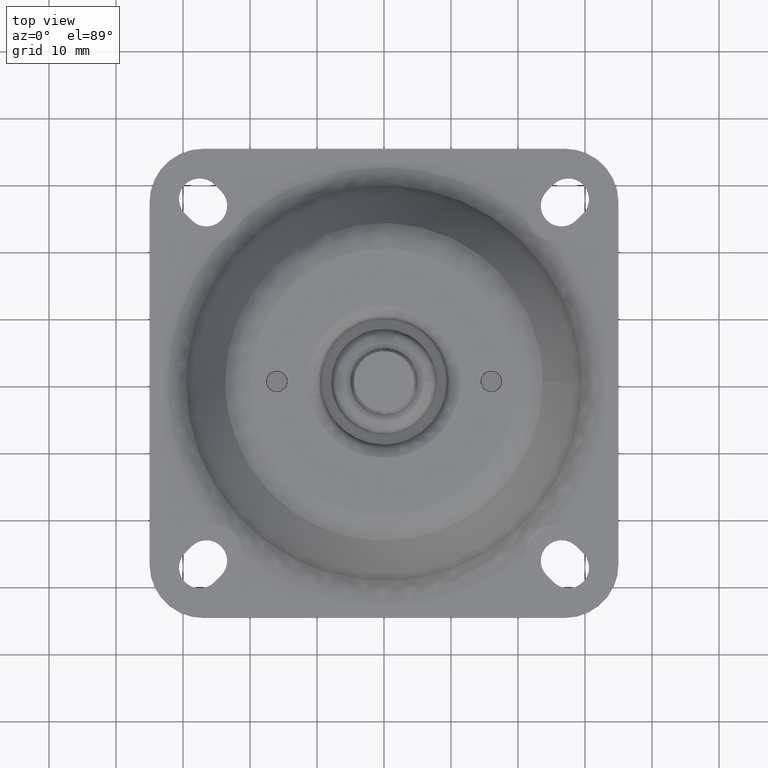
[diagram: clean part render]
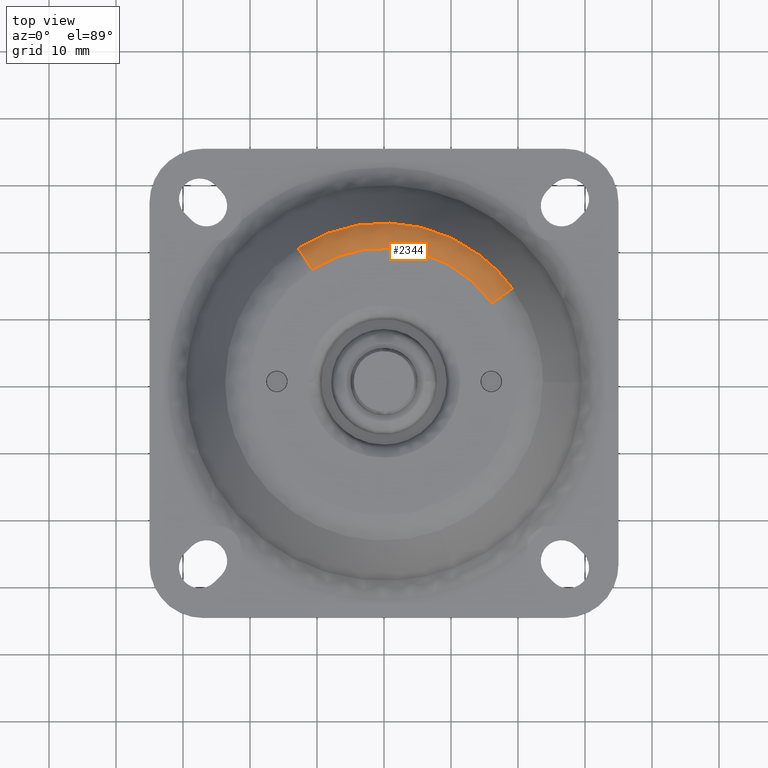
[diagram: same view with one face highlighted and labeled with its STEP entity id]
A machine part, top view. The second image highlights one B-rep face of the part: STEP entity #2344.
In plain terms, the highlighted face is a freeform B-spline surface patch.
Its self-contained STEP definition (entity closure, byte-faithful):
#2261=CARTESIAN_POINT('',(-10.659108895847385,16.589678917884669,27.995125357577159));
#2262=CARTESIAN_POINT('',(5.007410969956905,26.655644756954505,27.995125357577145));
#2263=CARTESIAN_POINT('',(15.952905349821734,11.590464181889741,27.995125357577155));
#2264=CARTESIAN_POINT('',(-12.106088251312720,18.841736115398579,28.118457542418049));
#2265=CARTESIAN_POINT('',(5.687169509686345,30.274161843777524,28.118457542418049));
#2266=CARTESIAN_POINT('',(18.118520217484598,13.163875482527512,28.118457542418053));
#2267=CARTESIAN_POINT('',(-12.877814990489364,20.042840160810311,25.850747548620337));
#2268=CARTESIAN_POINT('',(6.049709472203069,32.204048667332671,25.850747548620337));
#2269=CARTESIAN_POINT('',(19.273521423148953,14.003032978340139,25.850747548620333));
#2277=(BOUNDED_SURFACE()B_SPLINE_SURFACE(2,2,((#2261,#2264,#2267),(#2262,#2265,#2268),(#2263,#2266,#2269)),.UNSPECIFIED.,.F.,.F.,.U.)B_SPLINE_SURFACE_WITH_KNOTS((3,3),(3,3),(0.0,37.882597601404022),(0.0,4.968582099117784),.UNSPECIFIED.)GEOMETRIC_REPRESENTATION_ITEM()RATIONAL_B_SPLINE_SURFACE(((0.903213303377643,0.781272196253241,0.905127279978588),(0.664190500530456,0.574519406589171,0.665597969919837),(0.923997907048838,0.799250710185357,0.925955927780818)))REPRESENTATION_ITEM('')SURFACE());
#2278=CARTESIAN_POINT('',(-12.814746471438600,19.944679892121378,26.026962958469110));
#2279=VERTEX_POINT('',#2278);
#2280=CARTESIAN_POINT('',(19.179129287009381,13.934453077141571,26.026962970549022));
#2281=VERTEX_POINT('',#2280);
#2282=CARTESIAN_POINT('',(-12.814746471438600,19.944679892121378,26.026962958469110));
#2283=CARTESIAN_POINT('',(-11.399841660080080,20.854147050903741,26.026962957915590));
#2284=CARTESIAN_POINT('',(-9.299466324523078,21.906507061518639,26.026962957369360));
#2285=CARTESIAN_POINT('',(-6.233534431240479,22.911781831508389,26.026962957063610));
#2286=CARTESIAN_POINT('',(-3.584441108219649,23.502309804431292,26.026962957056512));
#2287=CARTESIAN_POINT('',(-0.551372528046693,23.773684798666832,26.026962957423450));
#2288=CARTESIAN_POINT('',(2.955646143607061,23.609644243812671,26.026962958289410));
#2289=CARTESIAN_POINT('',(5.900150005857563,23.029452214701880,26.026962959426331));
#2290=CARTESIAN_POINT('',(8.650601101898888,22.112744179074429,26.026962960834808));
#2291=CARTESIAN_POINT('',(11.129714457171589,21.008013400750929,26.026962962362770));
#2292=CARTESIAN_POINT('',(13.487149254365461,19.564879212453882,26.026962964178121));
#2293=CARTESIAN_POINT('',(16.388732447240422,17.277719409135312,26.026962966886270));
#2294=CARTESIAN_POINT('',(18.108416497518281,15.408862076588051,26.026962968966359));
#2295=CARTESIAN_POINT('',(19.179129287009381,13.934453077141571,26.026962970549022));
#2296=B_SPLINE_CURVE_WITH_KNOTS('',3,(#2282,#2283,#2284,#2285,#2286,#2287,#2288,#2289,#2290,#2291,#2292,#2293,#2294,#2295),.UNSPECIFIED.,.F.,.U.,(4,1,1,1,1,1,1,1,1,1,1,4),(0.000000044672234,5.045872818593004,7.008171210059707,9.671289411017870,13.175396222911330,16.118843243847000,20.183528909106069,22.145827019844610,24.808954478988131,28.313052315303491,30.415505435606299,35.881880140197509),.UNSPECIFIED.);
#2297=EDGE_CURVE('',#2279,#2281,#2296,.T.);
#2298=ORIENTED_EDGE('',*,*,#2297,.F.);
#2299=CARTESIAN_POINT('',(-10.773552346378890,16.767795861292520,28.0));
#2300=VERTEX_POINT('',#2299);
#2301=CARTESIAN_POINT('',(-10.773552346378890,16.767795861292520,28.0));
#2302=CARTESIAN_POINT('',(-10.935679656426180,17.020128383685769,28.000039309711450));
#2303=CARTESIAN_POINT('',(-11.259926973499530,17.524782062155520,27.941123556671609));
#2304=CARTESIAN_POINT('',(-11.679766424175931,18.178213908746159,27.706489197452711));
#2305=CARTESIAN_POINT('',(-12.083212767202269,18.806131767574001,27.337717552221591));
#2306=CARTESIAN_POINT('',(-12.467714152871450,19.404563977890628,26.816946128923490));
#2307=CARTESIAN_POINT('',(-12.707945275915209,19.778456107551889,26.311095320354820));
#2308=CARTESIAN_POINT('',(-12.814746471438600,19.944679892121378,26.026962958469110));
#2309=B_SPLINE_CURVE_WITH_KNOTS('',3,(#2301,#2302,#2303,#2304,#2305,#2306,#2307,#2308),.UNSPECIFIED.,.F.,.U.,(4,1,1,1,1,4),(0.000000036564232,0.899785426331286,1.799585457354965,2.422492304674517,3.391516508687668,4.429734921438554),.UNSPECIFIED.);
#2310=EDGE_CURVE('',#2300,#2279,#2309,.T.);
#2311=ORIENTED_EDGE('',*,*,#2310,.F.);
#2312=CARTESIAN_POINT('',(16.124185823796580,11.714906730508650,28.0));
#2313=VERTEX_POINT('',#2312);
#2314=CARTESIAN_POINT('',(16.124185823796580,11.714906730508650,28.0));
#2315=CARTESIAN_POINT('',(15.616272905633870,12.414010885791090,28.000000000000021));
#2316=CARTESIAN_POINT('',(14.282975118699049,14.018573780867721,27.999999999999961));
#2317=CARTESIAN_POINT('',(12.060420483557230,15.970964132572840,28.000000000000099));
#2318=CARTESIAN_POINT('',(9.632033907734652,17.507134151107021,27.999999999999961));
#2319=CARTESIAN_POINT('',(7.246749011561800,18.629897075263781,27.999999999999979));
#2320=CARTESIAN_POINT('',(4.843804775925732,19.391409094191030,28.000000000000060));
#2321=CARTESIAN_POINT('',(2.094125705960265,19.882756811347161,28.000000000000021));
#2322=CARTESIAN_POINT('',(-0.622491411982568,19.993773239756500,27.999999999999812));
#2323=CARTESIAN_POINT('',(-3.519245090252257,19.682702609376982,28.000000000000721));
#2324=CARTESIAN_POINT('',(-5.925423881892958,19.078728497421721,27.999999999998739));
#2325=CARTESIAN_POINT('',(-8.387311459527910,18.140366059262028,28.000000000002601));
#2326=CARTESIAN_POINT('',(-9.881344475834037,17.341126528913239,27.999999999997431));
#2327=CARTESIAN_POINT('',(-10.773552346378890,16.767795861292520,28.0));
#2328=B_SPLINE_CURVE_WITH_KNOTS('',3,(#2314,#2315,#2316,#2317,#2318,#2319,#2320,#2321,#2322,#2323,#2324,#2325,#2326,#2327),.UNSPECIFIED.,.F.,.U.,(4,1,1,1,1,1,1,1,1,1,1,4),(0.000000048810211,2.592405191925359,6.245390033625842,8.837827700917948,11.194579460025601,14.140550863747171,16.379407205991409,19.561046442908228,22.271318618869358,25.099434921305988,26.984832987933029,30.166442608397439),.UNSPECIFIED.);
#2329=EDGE_CURVE('',#2313,#2300,#2328,.T.);
#2330=ORIENTED_EDGE('',*,*,#2329,.F.);
#2331=CARTESIAN_POINT('',(16.124185823796580,11.714906730508650,28.0));
#2332=CARTESIAN_POINT('',(16.366827341041361,11.891196111839321,28.000019232525830));
#2333=CARTESIAN_POINT('',(16.945469106075130,12.311603962600589,27.929891574856558));
#2334=CARTESIAN_POINT('',(17.675837567696000,12.842247711067589,27.619708934545830));
#2335=CARTESIAN_POINT('',(18.253169233542561,13.261703719062590,27.190099958713589));
#2336=CARTESIAN_POINT('',(18.734121061889670,13.611135676276129,26.712259131137809));
#2337=CARTESIAN_POINT('',(19.019285974492110,13.818320112778199,26.311099090305259));
#2338=CARTESIAN_POINT('',(19.179129287009381,13.934453077141571,26.026962970549022));
#2339=B_SPLINE_CURVE_WITH_KNOTS('',3,(#2331,#2332,#2333,#2334,#2335,#2336,#2337,#2338),.UNSPECIFIED.,.F.,.U.,(4,1,1,1,1,4),(0.000000036564596,0.899785423594417,2.145666111621886,2.837789767666137,3.391516498369866,4.429734907961733),.UNSPECIFIED.);
#2340=EDGE_CURVE('',#2313,#2281,#2339,.T.);
#2341=ORIENTED_EDGE('',*,*,#2340,.T.);
#2342=EDGE_LOOP('',(#2298,#2311,#2330,#2341));
#2343=FACE_OUTER_BOUND('',#2342,.T.);
#2344=ADVANCED_FACE('',(#2343),#2277,.T.);